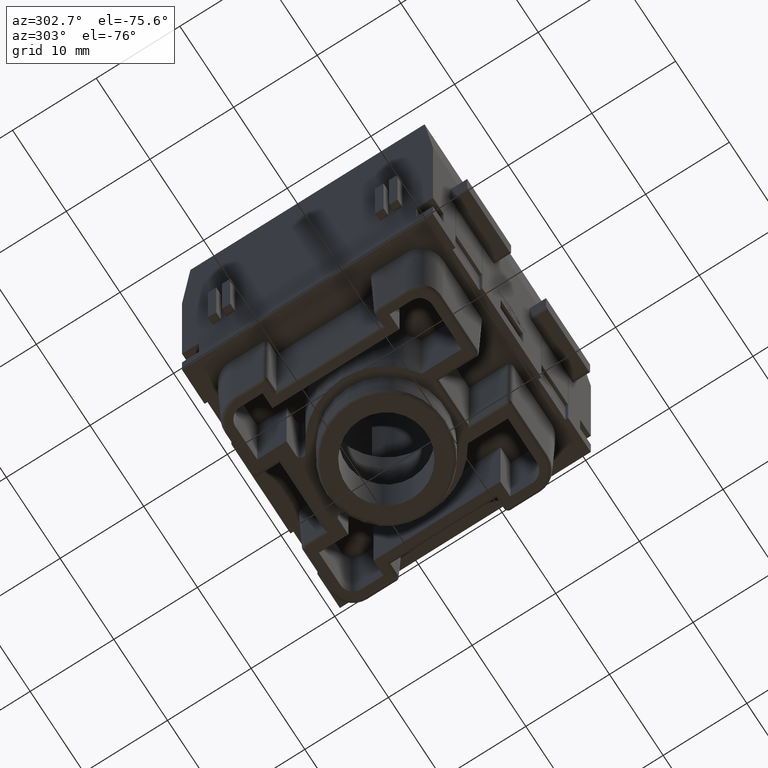
[diagram: clean part render]
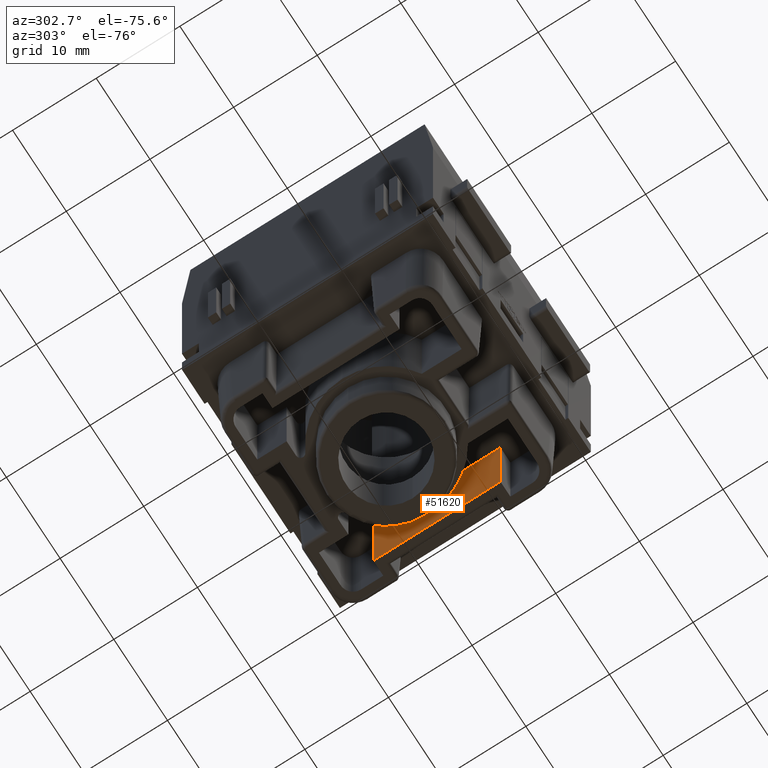
[diagram: same view with one face highlighted and labeled with its STEP entity id]
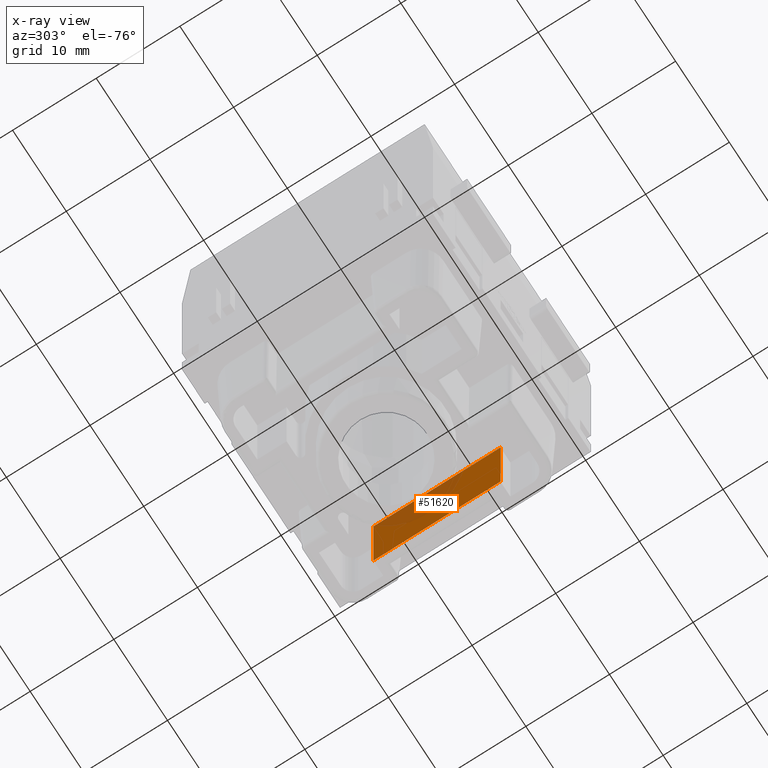
[diagram: x-ray of the same camera — body ghosted, the highlighted face saturated]
A machine part, auxiliary view. The second image highlights one B-rep face of the part: STEP entity #51620.
The next image is the same camera in x-ray: the body ghosted, the highlighted face saturated — about 28% of this face is hidden behind the body in this view.
In plain terms, the highlighted planar face has unit normal (1, 0, -0).
Its self-contained STEP definition (entity closure, byte-faithful):
#25040=CARTESIAN_POINT('',(31.947735,43.957183,-24.5999999999999));
#25050=VERTEX_POINT('',#25040);
#25100=CARTESIAN_POINT('',(31.947735,58.057183,-24.6));
#25110=DIRECTION('',(3.94430452610506E-31,1.,-2.40665319221843E-15));
#25120=VECTOR('',#25110,1.);
#25130=LINE('',#25100,#25120);
#25140=CARTESIAN_POINT('',(31.947735,57.7571830000001,-24.6));
#25150=VERTEX_POINT('',#25140);
#25160=EDGE_CURVE('',#25050,#25150,#25130,.T.);
#51320=CARTESIAN_POINT('',(31.947735,43.957183,-16.9999999999999));
#51330=DIRECTION('',(-1.,8.37088987273344E-31,1.22464679914735E-16));
#51340=DIRECTION('',(1.22464679914735E-16,2.40665319221843E-15,1.));
#51350=AXIS2_PLACEMENT_3D('',#51320,#51330,#51340);
#51360=PLANE('',#51350);
#51370=CARTESIAN_POINT('',(31.947735,43.957183,-4.55868960884608));
#51380=DIRECTION('',(-1.22464679914735E-16,1.11022302462516E-16,-1.));
#51390=VECTOR('',#51380,1.);
#51400=LINE('',#51370,#51390);
#51410=CARTESIAN_POINT('',(31.947735,43.957183,-9.39999999999994));
#51420=VERTEX_POINT('',#51410);
#51430=EDGE_CURVE('',#51420,#25050,#51400,.T.);
#51440=ORIENTED_EDGE('',*,*,#51430,.T.);
#51450=CARTESIAN_POINT('',(31.947735,58.057183,-9.39999999999997));
#51460=DIRECTION('',(-3.94430452610506E-31,-1.,2.40665319221843E-15));
#51470=VECTOR('',#51460,1.);
#51480=LINE('',#51450,#51470);
#51490=CARTESIAN_POINT('',(31.947735,57.7571830000002,-9.39999999999997)
);
#51500=VERTEX_POINT('',#51490);
#51510=EDGE_CURVE('',#51500,#51420,#51480,.T.);
#51520=ORIENTED_EDGE('',*,*,#51510,.T.);
#51530=CARTESIAN_POINT('',(31.947735,57.7571830000002,-4.55868960884607)
);
#51540=DIRECTION('',(1.22464679914735E-16,4.91288630944715E-15,1.));
#51550=VECTOR('',#51540,1.);
#51560=LINE('',#51530,#51550);
#51570=EDGE_CURVE('',#25150,#51500,#51560,.T.);
#51580=ORIENTED_EDGE('',*,*,#51570,.T.);
#51590=ORIENTED_EDGE('',*,*,#25160,.T.);
#51600=EDGE_LOOP('',(#51590,#51580,#51520,#51440));
#51610=FACE_OUTER_BOUND('',#51600,.T.);
#51620=ADVANCED_FACE('',(#51610),#51360,.F.);